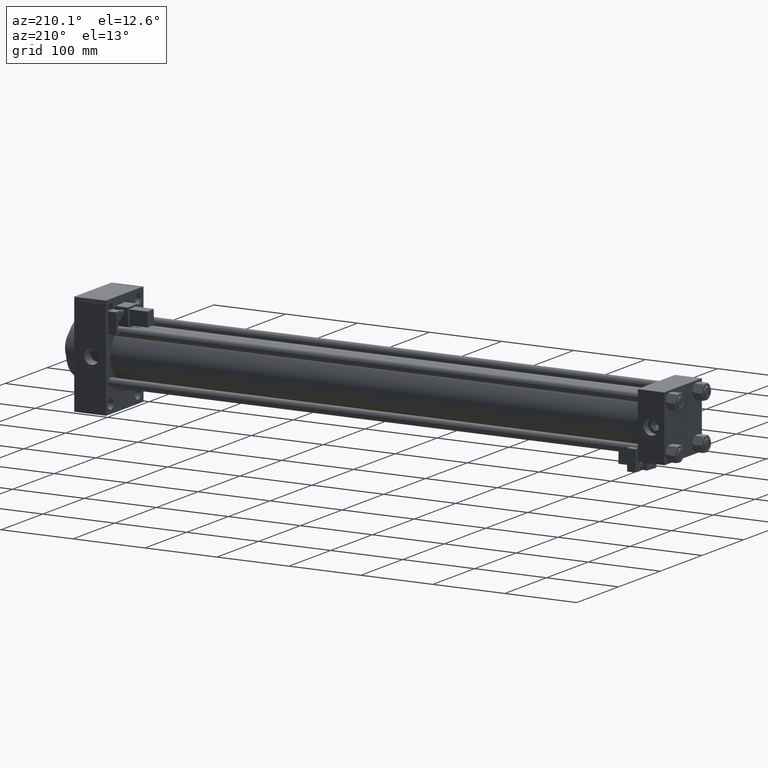
[diagram: clean part render]
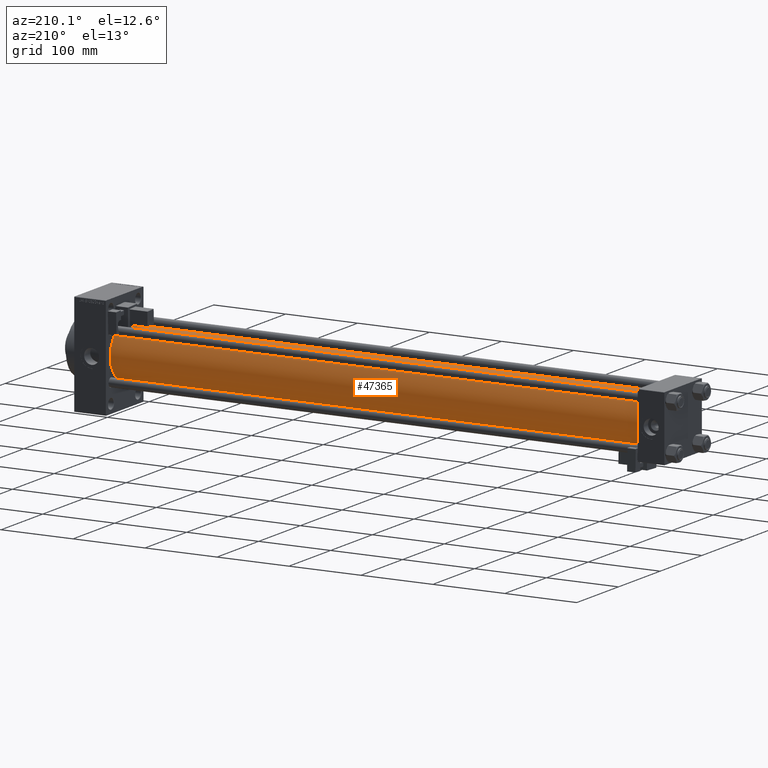
[diagram: same view with one face highlighted and labeled with its STEP entity id]
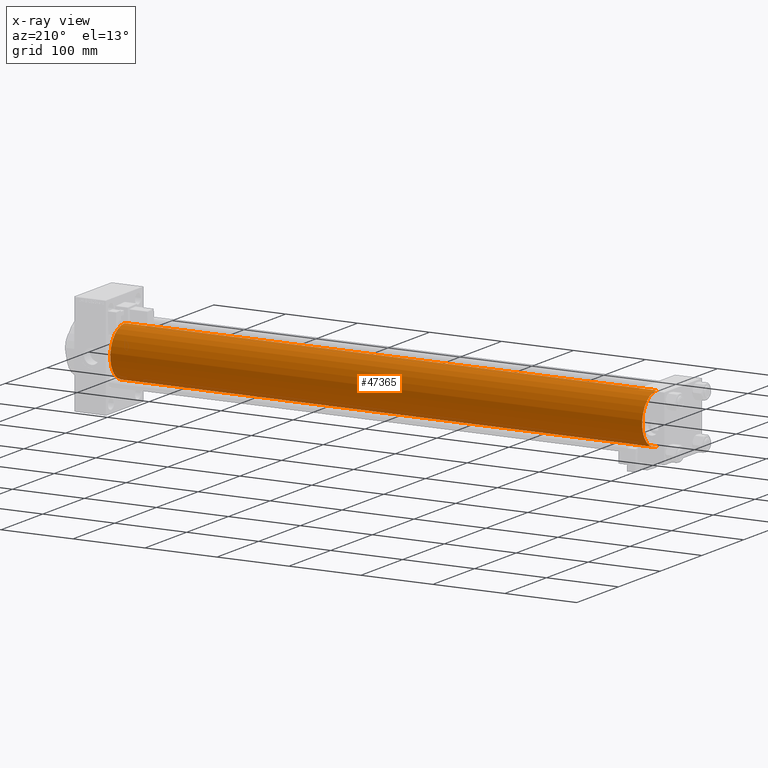
[diagram: x-ray of the same camera — body ghosted, the highlighted face saturated]
A machine part, auxiliary view. The second image highlights one B-rep face of the part: STEP entity #47365.
The next image is the same camera in x-ray: the body ghosted, the highlighted face saturated — about 0% of this face is hidden behind the body in this view.
In plain terms, the highlighted cylindrical surface (edge-blend (fillet) strip) has radius 34.5 mm, axis along (-1, -0, -0).
Its self-contained STEP definition (entity closure, byte-faithful):
#1009 = DIRECTION ( 'NONE',  ( 1.000000000000000000, 0.000000000000000000, 0.000000000000000000 ) ) ;
#1600 = VERTEX_POINT ( 'NONE', #26765 ) ;
#1666 = CARTESIAN_POINT ( 'NONE',  ( 37.00000000000003553, 1.622946243093157097E-15, -34.50000000000000000 ) ) ;
#2228 = ORIENTED_EDGE ( 'NONE', *, *, #31463, .T. ) ;
#5008 = DIRECTION ( 'NONE',  ( 0.000000000000000000, 0.000000000000000000, 1.000000000000000000 ) ) ;
#5160 = ORIENTED_EDGE ( 'NONE', *, *, #46899, .F. ) ;
#9138 = CARTESIAN_POINT ( 'NONE',  ( 776.0000000000000000, -2.602085213965210642E-15, 0.000000000000000000 ) ) ;
#9296 = CARTESIAN_POINT ( 'NONE',  ( 776.0000000000000000, 1.622946243093157097E-15, -34.50000000000000000 ) ) ;
#9467 = VERTEX_POINT ( 'NONE', #1666 ) ;
#11617 = CARTESIAN_POINT ( 'NONE',  ( 37.00000000000003553, -2.602085213965210642E-15, 0.000000000000000000 ) ) ;
#11659 = LINE ( 'NONE', #9296, #19002 ) ;
#13054 = EDGE_CURVE ( 'NONE', #45491, #1600, #39947, .T. ) ;
#14475 = EDGE_CURVE ( 'NONE', #9467, #1600, #36385, .T. ) ;
#17492 = DIRECTION ( 'NONE',  ( 0.000000000000000000, 0.000000000000000000, -1.000000000000000000 ) ) ;
#19002 = VECTOR ( 'NONE', #21589, 1000.000000000000000 ) ;
#19226 = EDGE_LOOP ( 'NONE', ( #5160, #2228, #19850, #46060 ) ) ;
#19392 = FACE_OUTER_BOUND ( 'NONE', #19226, .T. ) ;
#19458 = CARTESIAN_POINT ( 'NONE',  ( 776.0000000000000000, -2.602085213965210642E-15, 34.50000000000000000 ) ) ;
#19850 = ORIENTED_EDGE ( 'NONE', *, *, #14475, .T. ) ;
#21589 = DIRECTION ( 'NONE',  ( -1.000000000000000000, -0.000000000000000000, -0.000000000000000000 ) ) ;
#22310 = DIRECTION ( 'NONE',  ( 0.000000000000000000, 0.000000000000000000, 1.000000000000000000 ) ) ;
#26765 = CARTESIAN_POINT ( 'NONE',  ( 37.00000000000003553, -2.602085213965210642E-15, 34.50000000000000000 ) ) ;
#27019 = CIRCLE ( 'NONE', #47157, 34.50000000000000000 ) ;
#28271 = VERTEX_POINT ( 'NONE', #28609 ) ;
#28609 = CARTESIAN_POINT ( 'NONE',  ( 776.0000000000000000, 1.622946243093157097E-15, -34.50000000000000000 ) ) ;
#31463 = EDGE_CURVE ( 'NONE', #28271, #9467, #11659, .T. ) ;
#35163 = CYLINDRICAL_SURFACE ( 'NONE', #37932, 34.50000000000000000 ) ;
#36385 = CIRCLE ( 'NONE', #50654, 34.50000000000000000 ) ;
#37932 = AXIS2_PLACEMENT_3D ( 'NONE', #38840, #50925, #22310 ) ;
#38342 = CARTESIAN_POINT ( 'NONE',  ( 776.0000000000000000, -2.602085213965210642E-15, 34.50000000000000000 ) ) ;
#38840 = CARTESIAN_POINT ( 'NONE',  ( 776.0000000000000000, -2.602085213965210642E-15, 0.000000000000000000 ) ) ;
#39175 = DIRECTION ( 'NONE',  ( 1.000000000000000000, -0.000000000000000000, 0.000000000000000000 ) ) ;
#39947 = LINE ( 'NONE', #19458, #50705 ) ;
#45491 = VERTEX_POINT ( 'NONE', #38342 ) ;
#46060 = ORIENTED_EDGE ( 'NONE', *, *, #13054, .F. ) ;
#46899 = EDGE_CURVE ( 'NONE', #28271, #45491, #27019, .T. ) ;
#47157 = AXIS2_PLACEMENT_3D ( 'NONE', #9138, #1009, #17492 ) ;
#47365 = ADVANCED_FACE ( 'NONE', ( #19392 ), #35163, .T. ) ;
#50654 = AXIS2_PLACEMENT_3D ( 'NONE', #11617, #39175, #5008 ) ;
#50705 = VECTOR ( 'NONE', #51246, 1000.000000000000000 ) ;
#50925 = DIRECTION ( 'NONE',  ( -1.000000000000000000, -0.000000000000000000, -0.000000000000000000 ) ) ;
#51246 = DIRECTION ( 'NONE',  ( -1.000000000000000000, -0.000000000000000000, -0.000000000000000000 ) ) ;